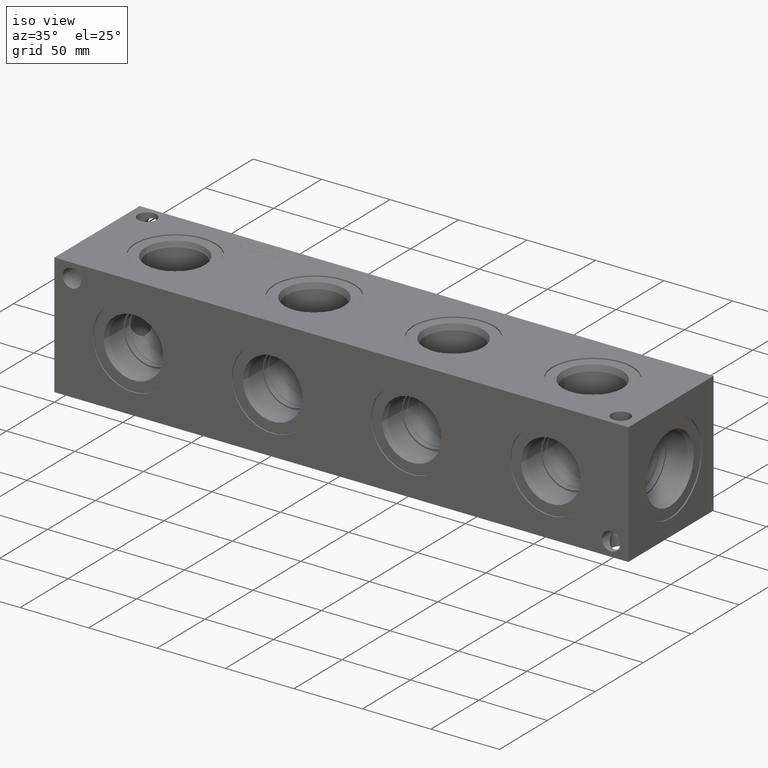
[diagram: clean part render]
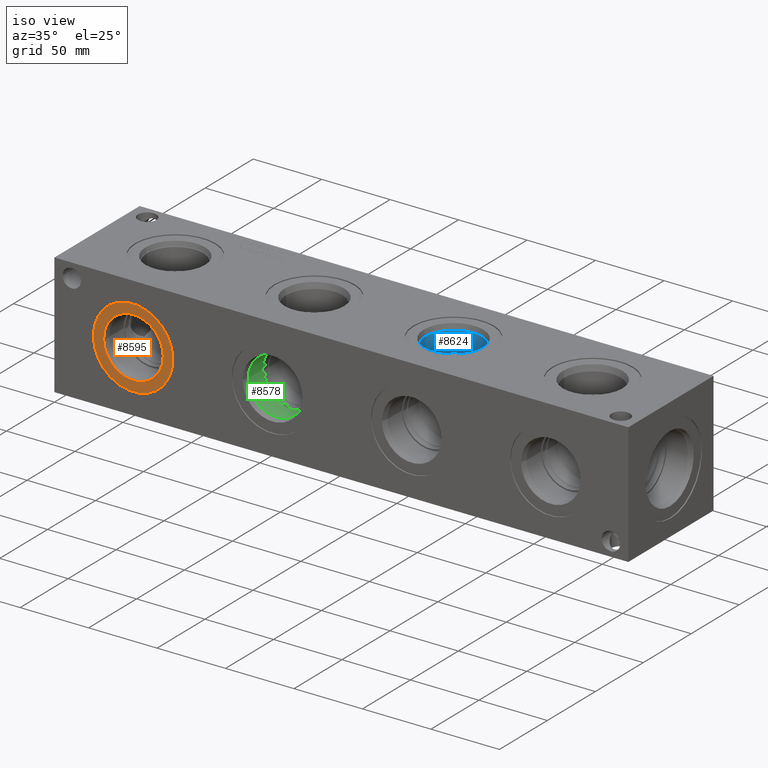
[diagram: same view with three faces highlighted in distinct colors, each labeled with its STEP entity id]
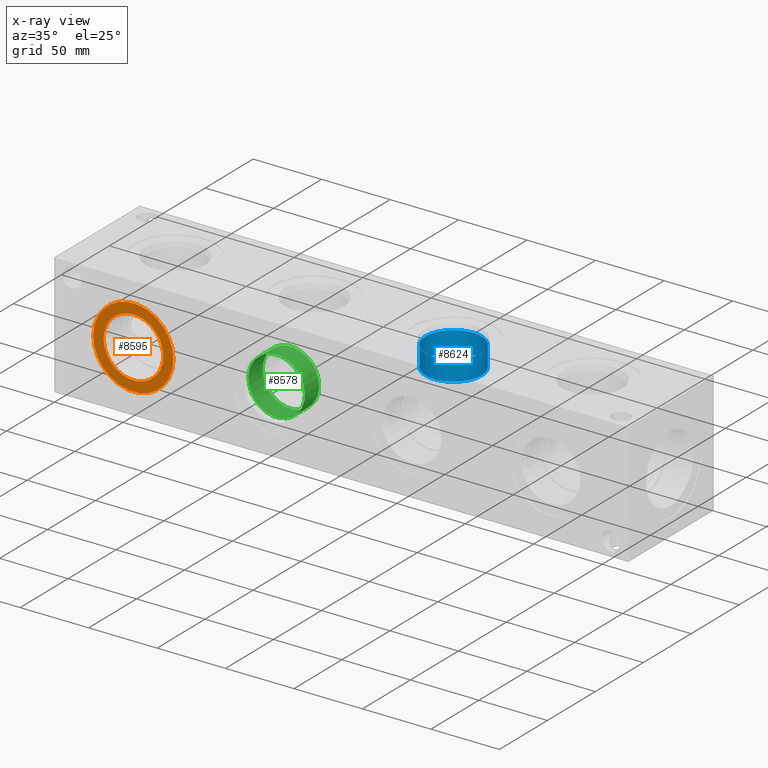
[diagram: x-ray of the same camera — body ghosted, the three highlighted faces saturated]
A machine part, iso view with three faces highlighted in distinct colors.
The next image is the same camera in x-ray (body ghosted, the three faces saturated) — at least one of them is partly hidden behind the body in this view.
Their STEP definitions:

[orange] entity #8595 — the highlighted planar face has unit normal (0, -1, 0).
#258=CIRCLE('',#9068,29.2862);
#259=CIRCLE('',#9069,29.2862);
#260=CIRCLE('',#9070,21.7551);
#407=FACE_BOUND('',#1626,.T.);
#1135=FACE_OUTER_BOUND('',#1625,.T.);
#1625=EDGE_LOOP('',(#7223,#7224));
#1626=EDGE_LOOP('',(#7225));
#3914=VERTEX_POINT('',#14952);
#3915=VERTEX_POINT('',#14953);
#3916=VERTEX_POINT('',#14956);
#5060=EDGE_CURVE('',#3914,#3915,#258,.T.);
#5061=EDGE_CURVE('',#3915,#3914,#259,.T.);
#5062=EDGE_CURVE('',#3916,#3916,#260,.T.);
#7223=ORIENTED_EDGE('',*,*,#5060,.T.);
#7224=ORIENTED_EDGE('',*,*,#5061,.T.);
#7225=ORIENTED_EDGE('',*,*,#5062,.F.);
#7915=PLANE('',#9067);
#8595=ADVANCED_FACE('',(#1135,#407),#7915,.T.);
#9067=AXIS2_PLACEMENT_3D('',#14951,#10690,#10691);
#9068=AXIS2_PLACEMENT_3D('',#14954,#10692,#10693);
#9069=AXIS2_PLACEMENT_3D('',#14955,#10694,#10695);
#9070=AXIS2_PLACEMENT_3D('',#14957,#10696,#10697);
#10690=DIRECTION('center_axis',(0.,-1.,0.));
#10691=DIRECTION('ref_axis',(1.,0.,0.));
#10692=DIRECTION('center_axis',(0.,-1.,0.));
#10693=DIRECTION('ref_axis',(1.,0.,0.));
#10694=DIRECTION('center_axis',(0.,-1.,0.));
#10695=DIRECTION('ref_axis',(1.,0.,0.));
#10696=DIRECTION('center_axis',(0.,-1.,0.));
#10697=DIRECTION('ref_axis',(1.,0.,0.));
#14951=CARTESIAN_POINT('Origin',(57.15,0.7874,44.45));
#14952=CARTESIAN_POINT('',(86.4362,0.7874,44.45));
#14953=CARTESIAN_POINT('',(27.8638,0.7874,44.45));
#14954=CARTESIAN_POINT('Origin',(57.15,0.7874,44.45));
#14955=CARTESIAN_POINT('Origin',(57.15,0.7874,44.45));
#14956=CARTESIAN_POINT('',(35.3949,0.7874,44.45));
#14957=CARTESIAN_POINT('Origin',(57.15,0.7874,44.45));

[blue] entity #8624 — the highlighted cylindrical surface (bore or boss wall) has radius 20.6375 mm, axis along (0, 0, 1).
#145=CYLINDRICAL_SURFACE('',#9144,20.6375);
#285=CIRCLE('',#9141,20.6375);
#286=CIRCLE('',#9142,20.6375);
#288=CIRCLE('',#9145,20.6375);
#1164=FACE_OUTER_BOUND('',#1658,.T.);
#1658=EDGE_LOOP('',(#7371,#7372,#7373,#7374,#7375));
#2436=LINE('',#15088,#3177);
#3177=VECTOR('',#10866,20.6375);
#3950=VERTEX_POINT('',#15079);
#3951=VERTEX_POINT('',#15080);
#3953=VERTEX_POINT('',#15086);
#5123=EDGE_CURVE('',#3950,#3951,#285,.T.);
#5124=EDGE_CURVE('',#3951,#3950,#286,.T.);
#5126=EDGE_CURVE('',#3953,#3953,#288,.T.);
#5127=EDGE_CURVE('',#3953,#3951,#2436,.T.);
#7371=ORIENTED_EDGE('',*,*,#5126,.F.);
#7372=ORIENTED_EDGE('',*,*,#5127,.T.);
#7373=ORIENTED_EDGE('',*,*,#5123,.F.);
#7374=ORIENTED_EDGE('',*,*,#5124,.F.);
#7375=ORIENTED_EDGE('',*,*,#5127,.F.);
#8624=ADVANCED_FACE('',(#1164),#145,.F.);
#9141=AXIS2_PLACEMENT_3D('',#15081,#10856,#10857);
#9142=AXIS2_PLACEMENT_3D('',#15082,#10858,#10859);
#9144=AXIS2_PLACEMENT_3D('',#15085,#10862,#10863);
#9145=AXIS2_PLACEMENT_3D('',#15087,#10864,#10865);
#10856=DIRECTION('center_axis',(0.,0.,1.));
#10857=DIRECTION('ref_axis',(1.,0.,0.));
#10858=DIRECTION('center_axis',(0.,0.,1.));
#10859=DIRECTION('ref_axis',(1.,0.,0.));
#10862=DIRECTION('center_axis',(0.,0.,1.));
#10863=DIRECTION('ref_axis',(1.,0.,0.));
#10864=DIRECTION('center_axis',(0.,0.,-1.));
#10865=DIRECTION('ref_axis',(1.,0.,0.));
#10866=DIRECTION('',(0.,0.,-1.));
#15079=CARTESIAN_POINT('',(280.9875,44.45,69.0626));
#15080=CARTESIAN_POINT('',(239.7125,44.45,69.0626));
#15081=CARTESIAN_POINT('Origin',(260.35,44.45,69.0626));
#15082=CARTESIAN_POINT('Origin',(260.35,44.45,69.0626));
#15085=CARTESIAN_POINT('Origin',(260.35,44.45,78.9813));
#15086=CARTESIAN_POINT('',(239.7125,44.45,83.929000017461));
#15087=CARTESIAN_POINT('Origin',(260.35,44.45,83.929000017461));
#15088=CARTESIAN_POINT('',(239.7125,44.45,78.9813));

[green] entity #8578 — the highlighted cylindrical surface (bore or boss wall) has radius 20.6375 mm, axis along (0, -1, 0).
#124=CYLINDRICAL_SURFACE('',#9023,20.6375);
#234=CIRCLE('',#9020,20.6375);
#235=CIRCLE('',#9021,20.6375);
#237=CIRCLE('',#9024,20.6375);
#1118=FACE_OUTER_BOUND('',#1606,.T.);
#1606=EDGE_LOOP('',(#7136,#7137,#7138,#7139,#7140));
#2404=LINE('',#14810,#3145);
#3145=VECTOR('',#10592,20.6375);
#3883=VERTEX_POINT('',#14801);
#3884=VERTEX_POINT('',#14802);
#3886=VERTEX_POINT('',#14808);
#5011=EDGE_CURVE('',#3883,#3884,#234,.T.);
#5012=EDGE_CURVE('',#3884,#3883,#235,.T.);
#5014=EDGE_CURVE('',#3886,#3886,#237,.T.);
#5015=EDGE_CURVE('',#3886,#3884,#2404,.T.);
#7136=ORIENTED_EDGE('',*,*,#5014,.F.);
#7137=ORIENTED_EDGE('',*,*,#5015,.T.);
#7138=ORIENTED_EDGE('',*,*,#5011,.F.);
#7139=ORIENTED_EDGE('',*,*,#5012,.F.);
#7140=ORIENTED_EDGE('',*,*,#5015,.F.);
#8578=ADVANCED_FACE('',(#1118),#124,.F.);
#9020=AXIS2_PLACEMENT_3D('',#14803,#10582,#10583);
#9021=AXIS2_PLACEMENT_3D('',#14804,#10584,#10585);
#9023=AXIS2_PLACEMENT_3D('',#14807,#10588,#10589);
#9024=AXIS2_PLACEMENT_3D('',#14809,#10590,#10591);
#10582=DIRECTION('center_axis',(0.,-1.,0.));
#10583=DIRECTION('ref_axis',(1.,0.,0.));
#10584=DIRECTION('center_axis',(0.,-1.,0.));
#10585=DIRECTION('ref_axis',(1.,0.,0.));
#10588=DIRECTION('center_axis',(0.,-1.,0.));
#10589=DIRECTION('ref_axis',(1.,0.,0.));
#10590=DIRECTION('center_axis',(0.,1.,0.));
#10591=DIRECTION('ref_axis',(1.,0.,0.));
#10592=DIRECTION('',(0.,1.,0.));
#14801=CARTESIAN_POINT('',(179.3875,19.8374,44.45));
#14802=CARTESIAN_POINT('',(138.1125,19.8374,44.45));
#14803=CARTESIAN_POINT('Origin',(158.75,19.8374,44.45));
#14804=CARTESIAN_POINT('Origin',(158.75,19.8374,44.45));
#14807=CARTESIAN_POINT('Origin',(158.75,9.9187,44.45));
#14808=CARTESIAN_POINT('',(138.1125,4.97099998253897,44.45));
#14809=CARTESIAN_POINT('Origin',(158.75,4.97099998253897,44.45));
#14810=CARTESIAN_POINT('',(138.1125,9.9187,44.45));